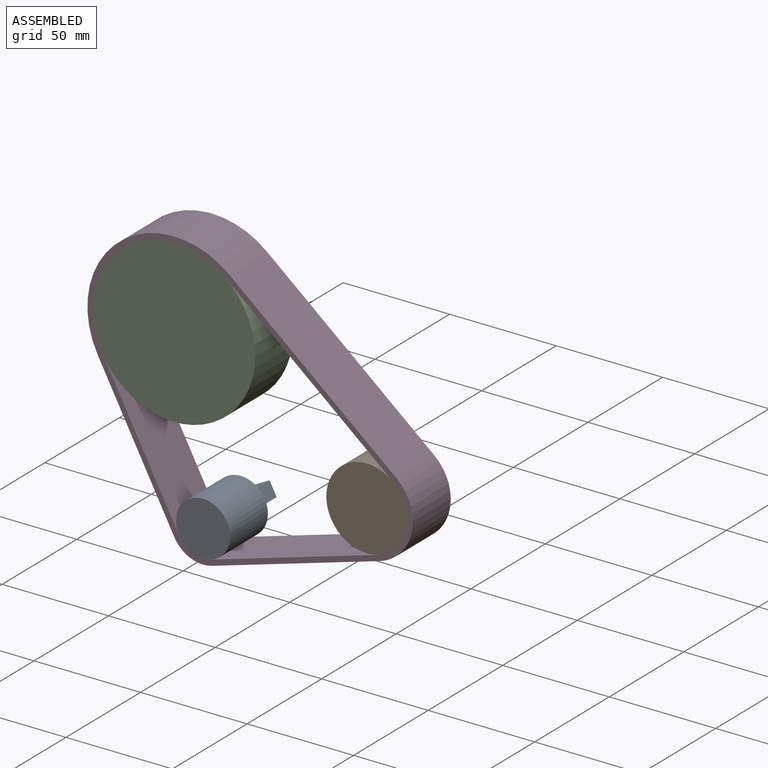
[diagram: assembled view]
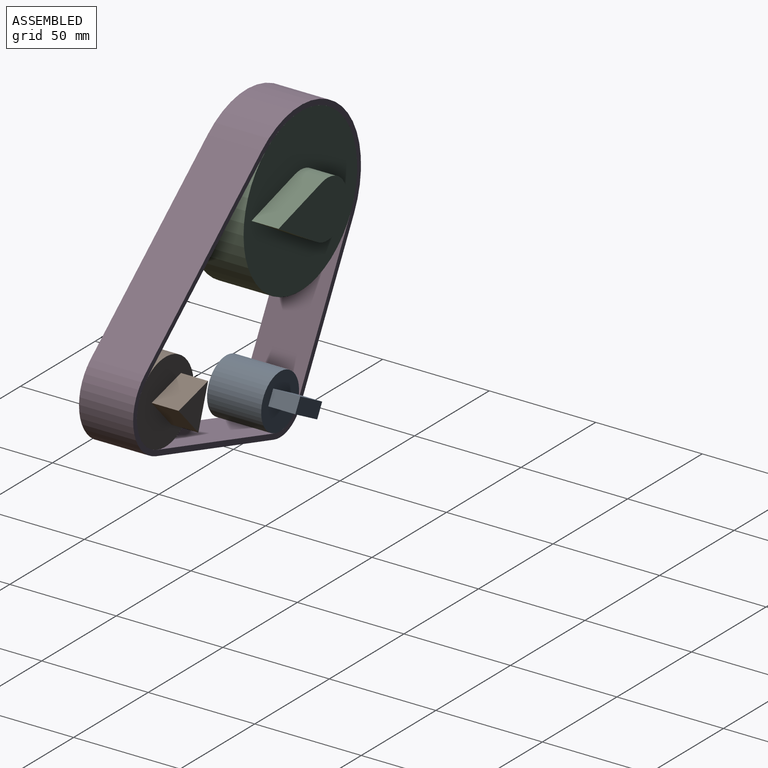
[diagram: assembled view, second angle]
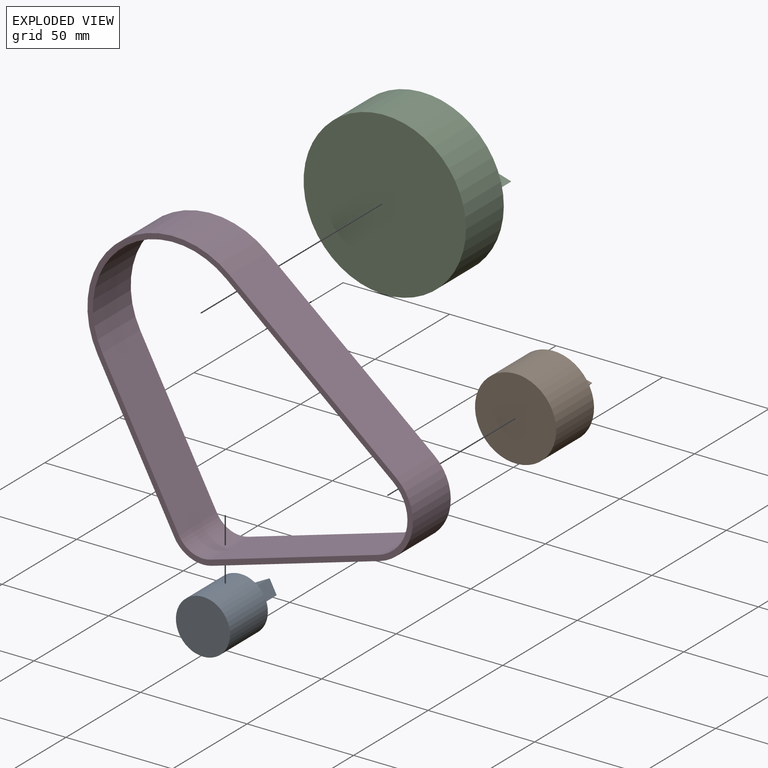
[diagram: exploded view]
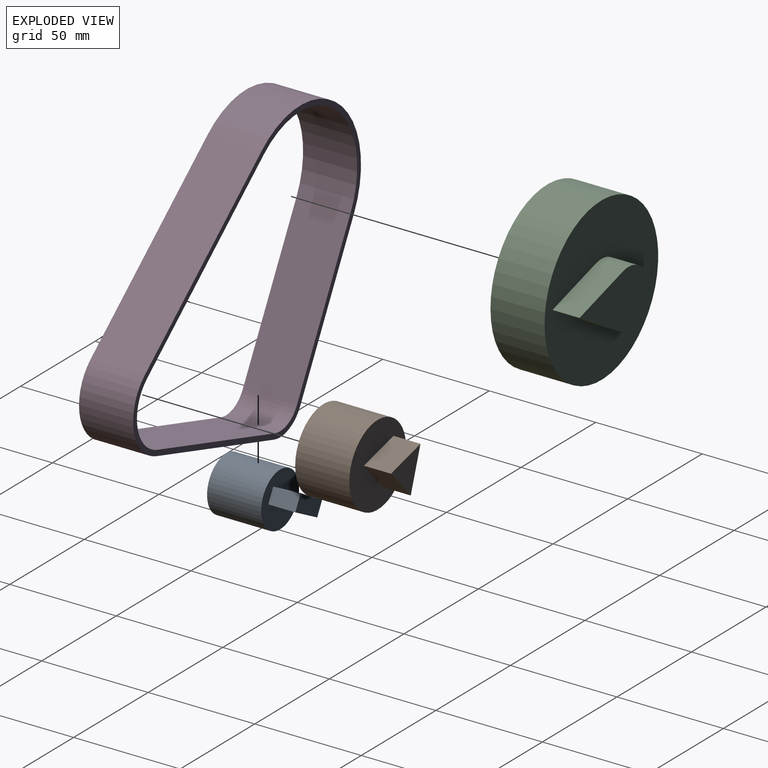
[diagram: exploded view, second angle]
ASSEMBLY  parts=4 mates=3
PART A: 8 faces, bbox 25.4x38.1x25.4 mm
  f0: cylinder r=12.7mm len=25.4mm, axis (0,1,0), area 2026.8mm2, adj f1,f2
  f1: plane 25.4x25.4mm, normal (0,-1,0), area 506.7mm2, adj f0
  f2: plane 25.4x25.4mm, normal (0,1,0), area 388.5mm2, adj f0,f3,f4,f5,f6
  f3: plane 12.7x7.12mm, normal (0,0,-1), area 90.4mm2, adj f2,f4,f6,f7
  f4: plane 16.6x12.7mm, normal (-1,0,0), area 210.8mm2, adj f2,f3,f5,f7
  f5: plane 12.7x7.12mm, normal (0,0,1), area 90.4mm2, adj f2,f4,f6,f7
  f6: plane 16.6x12.7mm, normal (1,0,0), area 210.8mm2, adj f2,f3,f5,f7
  f7: plane 16.6x7.12mm, normal (0,1,0), area 118.2mm2, adj f3,f4,f5,f6
PART B: 7 faces, bbox 38.1x38.1x38.1 mm
  f0: plane 38.1x38.1mm, normal (0,1,0), area 965.2mm2, adj f1,f3,f4,f5
  f1: cylinder r=19.05mm len=38.1mm, axis (0,1,0), area 3040.2mm2, adj f0,f2
  f2: plane 38.1x38.1mm, normal (0,-1,0), area 1140.1mm2, adj f1
  f3: plane 20.48x12.7mm, normal (1,0,0), area 260.1mm2, adj f0,f4,f5,f6
  f4: plane 17.08x12.7mm, normal (-0.55,0,-0.84), area 259.2mm2, adj f0,f3,f5,f6
  f5: plane 17.08x12.7mm, normal (-0.48,0,0.88), area 246.9mm2, adj f0,f3,f4,f6
  f6: plane 20.48x17.08mm, normal (0,1,0), area 174.8mm2, adj f3,f4,f5
PART C: 7 faces, bbox 76.2x38.1x76.2 mm
  f0: plane 76.2x76.2mm, normal (0,1,0), area 3806.2mm2, adj f1,f3,f4,f5
  f1: cylinder r=38.1mm len=76.2mm, axis (0,1,0), area 6080.5mm2, adj f0,f2
  f2: plane 76.2x76.2mm, normal (0,-1,0), area 4560.4mm2, adj f1
  f3: cylinder r=13.31mm len=26.62mm, axis (0,-1,0), area 671.3mm2, adj f0,f4,f5,f6
  f4: plane 27.2x13.18mm, normal (0.9,0,-0.44), area 383.9mm2, adj f0,f3,f5,f6
  f5: plane 28.09x12.7mm, normal (-0.93,0,-0.37), area 383.9mm2, adj f0,f3,f4,f6
  f6: plane 46.32x26.62mm, normal (0,1,0), area 754.1mm2, adj f3,f4,f5
PART D: 14 faces, bbox 152.8x25.4x135.6 mm
  f0: plane 152.78x135.64mm, normal (0,-1,0), area 1098mm2, adj f2,f3,f4,f5,f6,f7,f8,f9
  f1: plane 152.78x135.64mm, normal (0,1,0), area 1098mm2, adj f2,f3,f4,f5,f6,f7,f8,f9
  f2: cylinder r=21.59mm len=37.31mm, axis (0,-1,0), area 1185.7mm2, adj f0,f1,f5,f6
  f3: cylinder r=15.24mm len=25.4mm, axis (0,-1,0), area 529.5mm2, adj f0,f1,f6,f7
  f4: cylinder r=40.64mm len=66.64mm, axis (0,-1,0), area 2841.9mm2, adj f0,f1,f5,f7
  f5: plane 78.36x65.23mm, normal (0.64,0,0.77), area 2589.7mm2, adj f0,f1,f2,f4
  f6: plane 78.74x25.4mm, normal (0.28,0,-0.96), area 2084.1mm2, adj f0,f1,f2,f3
  f7: plane 67.85x36.03mm, normal (-0.88,0,-0.47), area 1951.3mm2, adj f0,f1,f3,f4
  f8: cylinder r=19.05mm len=32.92mm, axis (0,-1,0), area 1046.2mm2, adj f0,f1,f11,f12
  f9: cylinder r=12.7mm len=25.4mm, axis (0,-1,0), area 441.2mm2, adj f0,f1,f12,f13
  f10: cylinder r=38.1mm len=62.48mm, axis (0,-1,0), area 2664.3mm2, adj f0,f1,f11,f13
  f11: plane 78.36x65.23mm, normal (-0.64,0,-0.77), area 2589.7mm2, adj f0,f1,f8,f10
  f12: plane 78.74x25.4mm, normal (-0.28,0,0.96), area 2084.1mm2, adj f0,f1,f8,f9
  f13: plane 67.85x36.03mm, normal (0.88,0,0.47), area 1951.3mm2, adj f0,f1,f9,f10
PLACE A rot(axis=(0,1,0),62.1deg) t=(-10.54,-2.4,-30.83)mm
PLACE B rot(axis=(0,1,0),161.4deg) t=(86.89,-2.4,19.87)mm
PLACE C rot(axis=(0,-1,0),99.3deg) t=(-14.04,-2.4,92.12)mm
PLACE D t=(-26.3,-2.4,1.35)mm fixed
MATE revolute C.f1 <-> D.f4  axis (0,-1,0) through (-58.73,-15.1,51.94)mm
MATE revolute B.f1 <-> D.f2  axis (0,-1,0) through (31.81,-15.1,1.35)mm
MATE revolute A.f0 <-> D.f3  axis (0,-1,0) through (-45.14,-15.1,-27.82)mm
